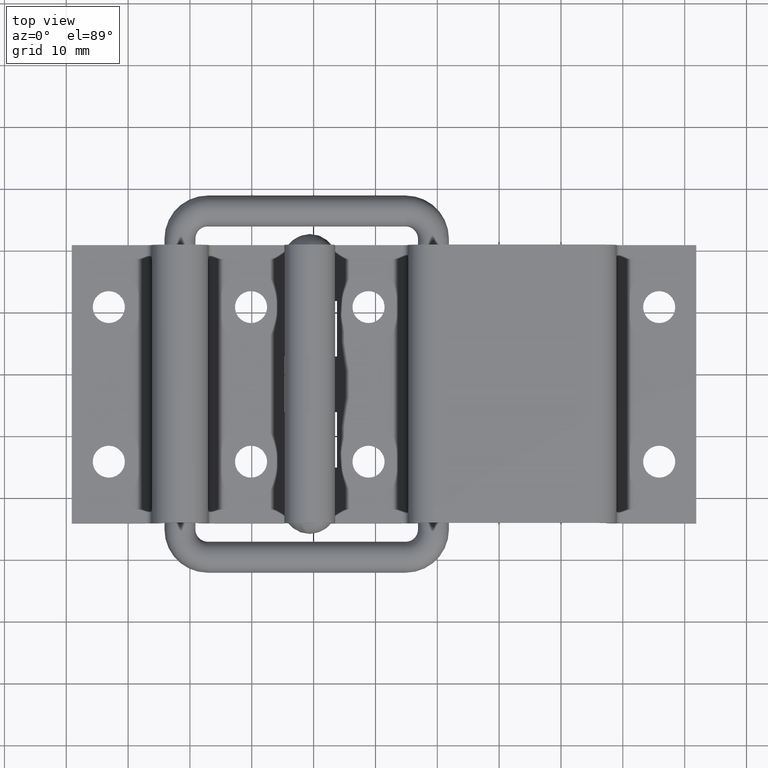
[diagram: clean part render]
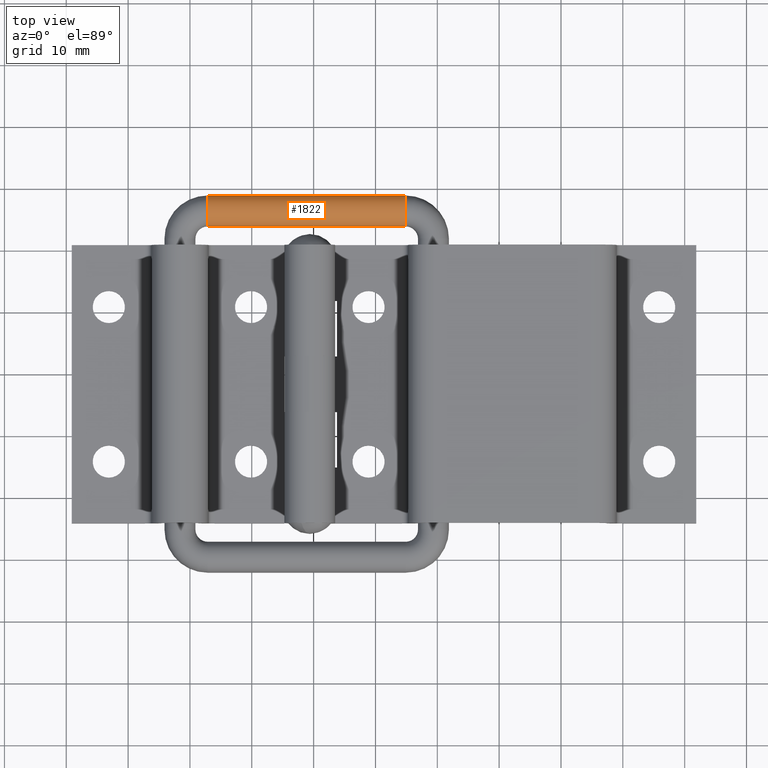
[diagram: same view with one face highlighted and labeled with its STEP entity id]
A machine part, top view. The second image highlights one B-rep face of the part: STEP entity #1822.
In plain terms, the highlighted cylindrical surface (edge-blend (fillet) strip) has radius 2.5 mm, axis along (1, 0, 0).
Its self-contained STEP definition (entity closure, byte-faithful):
#44 = VERTEX_POINT ( 'NONE', #3433 ) ;
#382 = ORIENTED_EDGE ( 'NONE', *, *, #3484, .T. ) ;
#479 = ORIENTED_EDGE ( 'NONE', *, *, #2552, .F. ) ;
#486 = VECTOR ( 'NONE', #610, 1000.000000000000000 ) ;
#493 = AXIS2_PLACEMENT_3D ( 'NONE', #3932, #1960, #4264 ) ;
#572 = VERTEX_POINT ( 'NONE', #1442 ) ;
#605 = DIRECTION ( 'NONE',  ( 1.000000000000000000, 0.0000000000000000000, 0.0000000000000000000 ) ) ;
#610 = DIRECTION ( 'NONE',  ( 1.000000000000000000, 0.0000000000000000000, 0.0000000000000000000 ) ) ;
#876 = CARTESIAN_POINT ( 'NONE',  ( 15.50000000000000000, 1.599998000000000300, 53.00000000000000700 ) ) ;
#1108 = ORIENTED_EDGE ( 'NONE', *, *, #2655, .T. ) ;
#1169 = LINE ( 'NONE', #2940, #486 ) ;
#1440 = LINE ( 'NONE', #2621, #3990 ) ;
#1442 = CARTESIAN_POINT ( 'NONE',  ( 15.50000000000000000, 1.599998000000000000, 48.00000000000000000 ) ) ;
#1485 = ORIENTED_EDGE ( 'NONE', *, *, #2843, .F. ) ;
#1655 = CARTESIAN_POINT ( 'NONE',  ( -16.49999999999975100, 1.599998000000000000, 50.50000000000000000 ) ) ;
#1712 = AXIS2_PLACEMENT_3D ( 'NONE', #1655, #3969, #1994 ) ;
#1822 = ADVANCED_FACE ( 'NONE', ( #3133 ), #3934, .T. ) ;
#1960 = DIRECTION ( 'NONE',  ( 1.000000000000000000, -0.0000000000000000000, 4.818676322157799500E-017 ) ) ;
#1994 = DIRECTION ( 'NONE',  ( 0.0000000000000000000, 0.0000000000000000000, 1.000000000000000000 ) ) ;
#2166 = DIRECTION ( 'NONE',  ( 0.0000000000000000000, 0.0000000000000000000, -1.000000000000000000 ) ) ;
#2208 = CARTESIAN_POINT ( 'NONE',  ( -16.49999999999975100, 1.599998000000000000, 48.00000000000000000 ) ) ;
#2552 = EDGE_CURVE ( 'NONE', #2770, #572, #3365, .T. ) ;
#2621 = CARTESIAN_POINT ( 'NONE',  ( -16.49999999999975100, 1.599998000000000000, 48.00000000000000000 ) ) ;
#2655 = EDGE_CURVE ( 'NONE', #44, #3810, #4047, .T. ) ;
#2770 = VERTEX_POINT ( 'NONE', #876 ) ;
#2843 = EDGE_CURVE ( 'NONE', #44, #2770, #1169, .T. ) ;
#2924 = EDGE_LOOP ( 'NONE', ( #1485, #1108, #382, #479 ) ) ;
#2940 = CARTESIAN_POINT ( 'NONE',  ( -16.49999999999975100, 1.599998000000000300, 53.00000000000000700 ) ) ;
#3133 = FACE_OUTER_BOUND ( 'NONE', #2924, .T. ) ;
#3365 = CIRCLE ( 'NONE', #493, 2.500000000000002200 ) ;
#3433 = CARTESIAN_POINT ( 'NONE',  ( -16.49999999999975100, 1.599998000000000300, 53.00000000000000700 ) ) ;
#3484 = EDGE_CURVE ( 'NONE', #3810, #572, #1440, .T. ) ;
#3486 = DIRECTION ( 'NONE',  ( 1.000000000000000000, 0.0000000000000000000, 0.0000000000000000000 ) ) ;
#3556 = AXIS2_PLACEMENT_3D ( 'NONE', #4152, #3486, #2166 ) ;
#3810 = VERTEX_POINT ( 'NONE', #2208 ) ;
#3932 = CARTESIAN_POINT ( 'NONE',  ( 15.50000000000000000, 1.599998000000000000, 50.50000000000000000 ) ) ;
#3934 = CYLINDRICAL_SURFACE ( 'NONE', #3556, 2.500000000000002200 ) ;
#3969 = DIRECTION ( 'NONE',  ( 1.000000000000000000, -0.0000000000000000000, 4.818676322157799500E-017 ) ) ;
#3990 = VECTOR ( 'NONE', #605, 1000.000000000000000 ) ;
#4047 = CIRCLE ( 'NONE', #1712, 2.500000000000002200 ) ;
#4152 = CARTESIAN_POINT ( 'NONE',  ( -16.49999999999975100, 1.599998000000000000, 50.50000000000000000 ) ) ;
#4264 = DIRECTION ( 'NONE',  ( 0.0000000000000000000, 0.0000000000000000000, 1.000000000000000000 ) ) ;